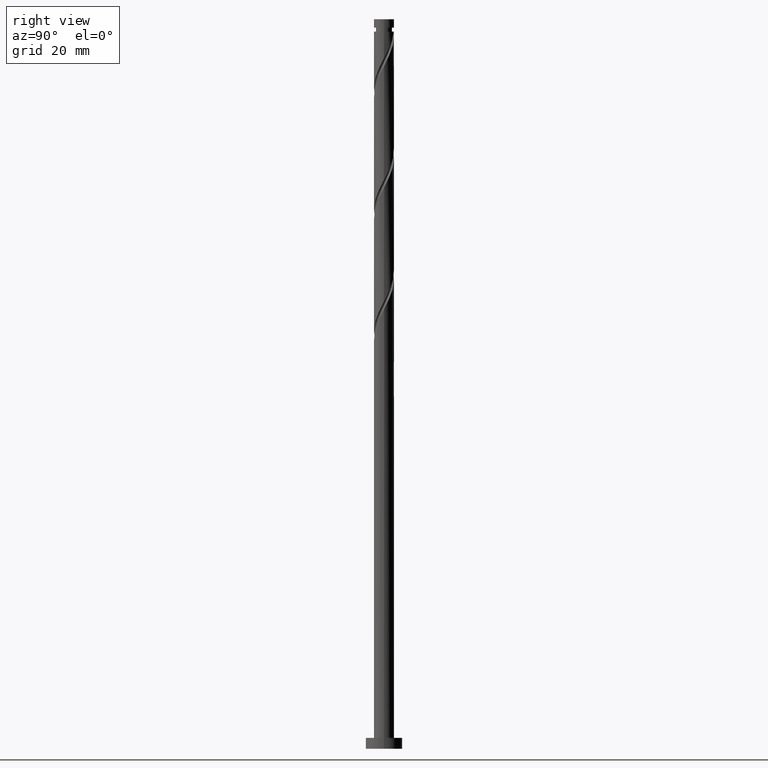
[diagram: clean part render]
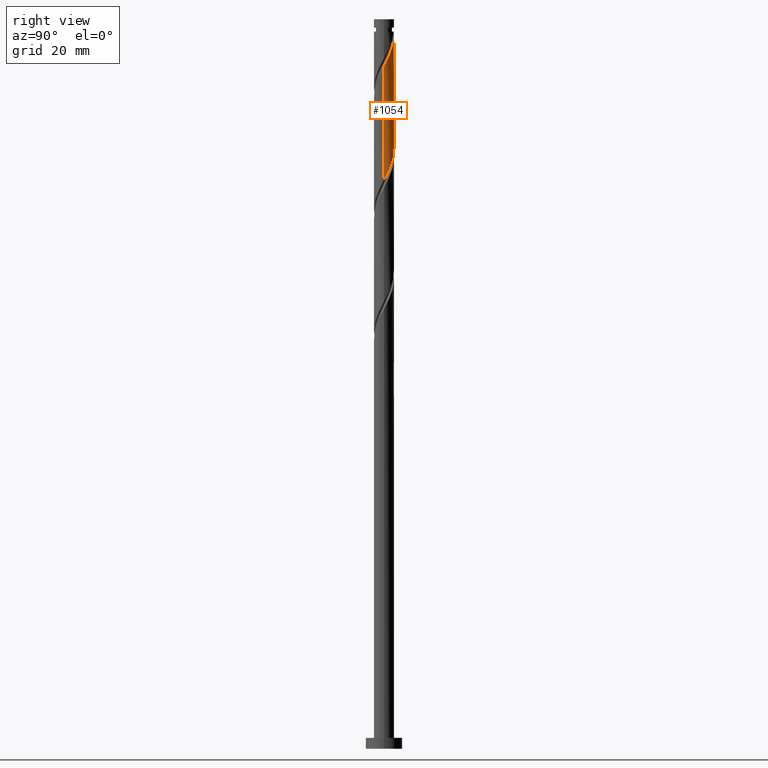
[diagram: same view with one face highlighted and labeled with its STEP entity id]
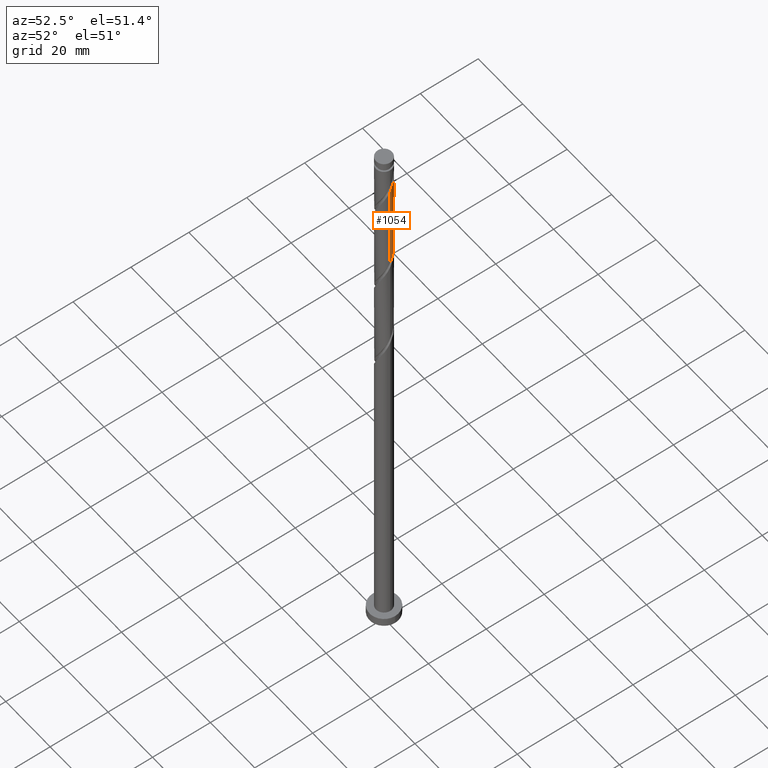
[diagram: same view with one face highlighted and labeled with its STEP entity id]
A machine part, right view. The second image highlights one B-rep face of the part: STEP entity #1054.
A second angle (auxiliary view) of the same face is appended — the face is thin or edge-on in the first view.
In plain terms, the highlighted cylindrical surface (edge-blend (fillet) strip) has radius 2.75 mm, axis along (-0, -0, -1).
Its self-contained STEP definition (entity closure, byte-faithful):
#12 = VERTEX_POINT ( 'NONE', #1379 ) ;
#15 = CARTESIAN_POINT ( 'NONE',  ( -1.216865369375927486, 2.492551864551397323, 166.7433014114770344 ) ) ;
#38 = CARTESIAN_POINT ( 'NONE',  ( 2.607560008403383645, 0.8735735816606092774, 157.7155236336992630 ) ) ;
#119 = VERTEX_POINT ( 'NONE', #858 ) ;
#125 = CARTESIAN_POINT ( 'NONE',  ( 0.000000000000000000, 0.000000000000000000, 196.6044125225881487 ) ) ;
#146 = DIRECTION ( 'NONE',  ( -0.000000000000000000, -0.000000000000000000, -1.000000000000000000 ) ) ;
#160 = CARTESIAN_POINT ( 'NONE',  ( -0.1689210922673422266, 2.744807035947555818, 164.6599680781436348 ) ) ;
#198 = CARTESIAN_POINT ( 'NONE',  ( 0.000000000000000000, 0.000000000000000000, 200.0000000000000000 ) ) ;
#208 = FACE_OUTER_BOUND ( 'NONE', #1196, .T. ) ;
#218 = ORIENTED_EDGE ( 'NONE', *, *, #1139, .T. ) ;
#285 = CARTESIAN_POINT ( 'NONE',  ( 2.744807035947555818, 0.1689210922673408943, 156.3266347448103488 ) ) ;
#288 = LINE ( 'NONE', #678, #787 ) ;
#314 = CARTESIAN_POINT ( 'NONE',  ( -2.060316917994740482, 1.821426418339388231, 168.8266347448102920 ) ) ;
#394 = ORIENTED_EDGE ( 'NONE', *, *, #689, .F. ) ;
#399 = DIRECTION ( 'NONE',  ( -1.000000000000000000, 0.000000000000000000, 0.000000000000000000 ) ) ;
#422 = CARTESIAN_POINT ( 'NONE',  ( 1.821426418339389119, 2.060316917994739150, 160.4933014114770344 ) ) ;
#438 = ORIENTED_EDGE ( 'NONE', *, *, #1690, .F. ) ;
#454 =( BOUNDED_CURVE ( )  B_SPLINE_CURVE ( 2, ( #1287, #742, #595, #1703, #1571, #613, #1175, #1167, #1432, #730, #625, #1712, #1552, #852, #1398 ),
 .UNSPECIFIED., .F., .T. ) 
 B_SPLINE_CURVE_WITH_KNOTS ( ( 3, 2, 2, 2, 2, 2, 2, 3 ),
 ( 0.6795317669814461281, 0.6875000000000000000, 0.6979166666666667407, 0.7083333333333332593, 0.7187499999999998890, 0.7291666666666666297, 0.7395833333333331483, 0.7499999999999998890 ),
 .UNSPECIFIED. ) 
 CURVE ( )  GEOMETRIC_REPRESENTATION_ITEM ( )  RATIONAL_B_SPLINE_CURVE ( ( 0.9062941362546530488, 0.9031415850403571310, 0.9090909090909324863, 0.9013135103398509651, 0.9090909090909324863, 0.9013135103398509651, 0.9090909090909324863, 0.9013135103398509651, 0.9090909090909324863, 0.9013135103398509651, 0.9090909090909324863, 0.9013135103398509651, 0.9090909090909324863, 0.9013135103398509651, 0.9090909090909324863 ) ) 
 REPRESENTATION_ITEM ( '' )  );
#531 = CARTESIAN_POINT ( 'NONE',  ( -2.750000000000000000, 2.901034182062286883E-15, 172.6679791777982587 ) ) ;
#546 = CARTESIAN_POINT ( 'NONE',  ( -2.461533167750520779, 1.226113560835244920, 170.2155236336992630 ) ) ;
#564 = CARTESIAN_POINT ( 'NONE',  ( 1.226113560835246696, 2.461533167750520334, 161.8821903003658917 ) ) ;
#587 = CYLINDRICAL_SURFACE ( 'NONE', #589, 2.750000000000000000 ) ;
#589 = AXIS2_PLACEMENT_3D ( 'NONE', #198, #1143, #1435 ) ;
#595 = CARTESIAN_POINT ( 'NONE',  ( 2.695000000000002949, 0.5472430904086422743, 188.2710791892548059 ) ) ;
#613 = CARTESIAN_POINT ( 'NONE',  ( 2.300112255140790651, 1.550180550263815071, 190.3544125225880634 ) ) ;
#625 = CARTESIAN_POINT ( 'NONE',  ( 0.8735735816606140514, 2.607560008403386309, 193.8266347448103772 ) ) ;
#652 = CARTESIAN_POINT ( 'NONE',  ( 2.750000000000002665, -1.495378444361994384E-16, 187.2075125340446959 ) ) ;
#678 = CARTESIAN_POINT ( 'NONE',  ( -2.750000000000000000, 0.000000000000000000, 200.0000000000000000 ) ) ;
#687 = CARTESIAN_POINT ( 'NONE',  ( 2.750000000000000000, 3.367778697655221012E-16, 200.0000000000000000 ) ) ;
#689 = EDGE_CURVE ( 'NONE', #12, #1292, #288, .T. ) ;
#695 = CARTESIAN_POINT ( 'NONE',  ( -2.622954080360256679, 0.9020465714066745466, 170.9099680781437485 ) ) ;
#704 = CARTESIAN_POINT ( 'NONE',  ( 0.1924396094106105570, 2.767045919639743445, 163.9655236336992914 ) ) ;
#730 = CARTESIAN_POINT ( 'NONE',  ( 1.216865369375930372, 2.492551864551399099, 193.1321903003658917 ) ) ;
#742 = CARTESIAN_POINT ( 'NONE',  ( 2.750000000000003997, 0.2763853991962788581, 187.7409389032339959 ) ) ;
#783 = DIRECTION ( 'NONE',  ( -0.000000000000000000, -0.000000000000000000, -1.000000000000000000 ) ) ;
#787 = VECTOR ( 'NONE', #146, 1000.000000000000000 ) ;
#797 = ORIENTED_EDGE ( 'NONE', *, *, #1360, .T. ) ;
#808 = CARTESIAN_POINT ( 'NONE',  ( -1.820521580848695864, 2.092672286414962279, 168.1321903003659202 ) ) ;
#818 = CARTESIAN_POINT ( 'NONE',  ( 2.292612075483179357, 1.518693475112310454, 159.1044125225881487 ) ) ;
#827 = CARTESIAN_POINT ( 'NONE',  ( 0.9020465714066768781, 2.622954080360256235, 162.5766347448104057 ) ) ;
#841 = DIRECTION ( 'NONE',  ( -0.000000000000000000, -0.000000000000000000, -1.000000000000000000 ) ) ;
#852 = CARTESIAN_POINT ( 'NONE',  ( -0.1924396094106037569, 2.767045919639746554, 195.9099680781436632 ) ) ;
#855 = VERTEX_POINT ( 'NONE', #951 ) ;
#858 = CARTESIAN_POINT ( 'NONE',  ( -0.5472430904086418302, 2.695000000000000284, 196.6044125225881487 ) ) ;
#939 = VECTOR ( 'NONE', #841, 1000.000000000000000 ) ;
#951 = CARTESIAN_POINT ( 'NONE',  ( 2.750000000000000000, 3.162725409825637737E-15, 156.0013125111315162 ) ) ;
#982 = CARTESIAN_POINT ( 'NONE',  ( 2.092672286414963168, 1.820521580848694754, 159.7988569670325774 ) ) ;
#999 = CIRCLE ( 'NONE', #1447, 2.749999999999987566 ) ;
#1054 = ADVANCED_FACE ( 'NONE', ( #208 ), #587, .T. ) ;
#1090 = CARTESIAN_POINT ( 'NONE',  ( -2.750000000000000888, 0.2763853991962820222, 172.1345528086089587 ) ) ;
#1100 = CARTESIAN_POINT ( 'NONE',  ( -2.694999999999998952, 0.5472430904086424963, 171.6044125225881487 ) ) ;
#1123 = CARTESIAN_POINT ( 'NONE',  ( 2.750000000000000888, 0.08454036705859832579, 156.1644761991597363 ) ) ;
#1139 = EDGE_CURVE ( 'NONE', #12, #119, #999, .T. ) ;
#1143 = DIRECTION ( 'NONE',  ( -0.000000000000000000, -0.000000000000000000, -1.000000000000000000 ) ) ;
#1167 = CARTESIAN_POINT ( 'NONE',  ( 1.820521580848699639, 2.092672286414961835, 191.7433014114770344 ) ) ;
#1175 = CARTESIAN_POINT ( 'NONE',  ( 2.060316917994744923, 1.821426418339388897, 191.0488569670326058 ) ) ;
#1196 = EDGE_LOOP ( 'NONE', ( #1647, #797, #438, #394, #218 ) ) ;
#1206 = VERTEX_POINT ( 'NONE', #652 ) ;
#1246 = CARTESIAN_POINT ( 'NONE',  ( 2.722568152255370855, 0.5302817939452934004, 157.0210791892548059 ) ) ;
#1287 = CARTESIAN_POINT ( 'NONE',  ( 2.750000000000002665, -1.495378444361994384E-16, 187.2075125340446959 ) ) ;
#1292 = VERTEX_POINT ( 'NONE', #531 ) ;
#1344 = CARTESIAN_POINT ( 'NONE',  ( 0.5472430904086428294, 2.694999999999998952, 163.2710791892548059 ) ) ;
#1358 = CARTESIAN_POINT ( 'NONE',  ( -2.750000000000000000, 2.901034182062286883E-15, 172.6679791777982587 ) ) ;
#1360 = EDGE_CURVE ( 'NONE', #1206, #855, #1654, .T. ) ;
#1368 = CARTESIAN_POINT ( 'NONE',  ( -1.518693475112311564, 2.292612075483178469, 167.4377458559214631 ) ) ;
#1379 = CARTESIAN_POINT ( 'NONE',  ( -2.749999999999987566, 0.000000000000000000, 196.6044125225881487 ) ) ;
#1381 = CARTESIAN_POINT ( 'NONE',  ( -0.8735735816606108317, 2.607560008403383645, 166.0488569670325205 ) ) ;
#1398 = CARTESIAN_POINT ( 'NONE',  ( -0.5472430904086418302, 2.695000000000000284, 196.6044125225881487 ) ) ;
#1432 = CARTESIAN_POINT ( 'NONE',  ( 1.518693475112314006, 2.292612075483181133, 192.4377458559214631 ) ) ;
#1435 = DIRECTION ( 'NONE',  ( -1.000000000000000000, 0.000000000000000000, 0.000000000000000000 ) ) ;
#1447 = AXIS2_PLACEMENT_3D ( 'NONE', #125, #783, #399 ) ;
#1497 = CARTESIAN_POINT ( 'NONE',  ( -2.300112255140786655, 1.550180550263815737, 169.5210791892548912 ) ) ;
#1517 = CARTESIAN_POINT ( 'NONE',  ( 2.750000000000000000, 3.162725409825637737E-15, 156.0013125111315446 ) ) ;
#1527 = CARTESIAN_POINT ( 'NONE',  ( 1.550180550263816848, 2.300112255140786210, 161.1877458559215768 ) ) ;
#1552 = CARTESIAN_POINT ( 'NONE',  ( 0.1689210922673451132, 2.744807035947559370, 195.2155236336993198 ) ) ;
#1571 = CARTESIAN_POINT ( 'NONE',  ( 2.461533167750525664, 1.226113560835244698, 189.6599680781436632 ) ) ;
#1583 = EDGE_CURVE ( 'NONE', #1206, #119, #454, .T. ) ;
#1629 = CARTESIAN_POINT ( 'NONE',  ( 2.492551864551397323, 1.216865369375925265, 158.4099680781437200 ) ) ;
#1647 = ORIENTED_EDGE ( 'NONE', *, *, #1583, .F. ) ;
#1654 = LINE ( 'NONE', #687, #939 ) ;
#1661 = CARTESIAN_POINT ( 'NONE',  ( -0.5302817939452950657, 2.722568152255369522, 165.3544125225881487 ) ) ;
#1677 =( BOUNDED_CURVE ( )  B_SPLINE_CURVE ( 2, ( #1358, #1090, #1100, #695, #546, #1497, #314, #808, #1368, #15, #1381, #1661, #160, #704, #1344, #827, #564, #1527, #422, #982, #818, #1629, #38, #1246, #285, #1123, #1517 ),
 .UNSPECIFIED., .F., .T. ) 
 B_SPLINE_CURVE_WITH_KNOTS ( ( 3, 2, 2, 2, 2, 2, 2, 2, 2, 2, 2, 2, 2, 3 ),
 ( 0.4295317669814461836, 0.4375000000000000000, 0.4479166666666666852, 0.4583333333333333148, 0.4687500000000000000, 0.4791666666666666852, 0.4895833333333333148, 0.5000000000000000000, 0.5104166666666666297, 0.5208333333333333703, 0.5312500000000000000, 0.5416666666666666297, 0.5520833333333333703, 0.5545317669814463502 ),
 .UNSPECIFIED. ) 
 CURVE ( )  GEOMETRIC_REPRESENTATION_ITEM ( )  RATIONAL_B_SPLINE_CURVE ( ( 0.9062941362546476087, 0.9031415850403516909, 0.9090909090909271573, 0.9013135103398454140, 0.9090909090909271573, 0.9013135103398454140, 0.9090909090909271573, 0.9013135103398454140, 0.9090909090909271573, 0.9013135103398454140, 0.9090909090909271573, 0.9013135103398454140, 0.9090909090909271573, 0.9013135103398454140, 0.9090909090909271573, 0.9013135103398454140, 0.9090909090909271573, 0.9013135103398454140, 0.9090909090909271573, 0.9013135103398454140, 0.9090909090909271573, 0.9013135103398454140, 0.9090909090909271573, 0.9013135103398454140, 0.9090909090909271573, 0.9072628343904207693, 0.9062941362546472757 ) ) 
 REPRESENTATION_ITEM ( '' )  );
#1690 = EDGE_CURVE ( 'NONE', #1292, #855, #1677, .T. ) ;
#1703 = CARTESIAN_POINT ( 'NONE',  ( 2.622954080360260232, 0.9020465714066742136, 188.9655236336992630 ) ) ;
#1712 = CARTESIAN_POINT ( 'NONE',  ( 0.5302817939452980633, 2.722568152255373075, 194.5210791892548059 ) ) ;